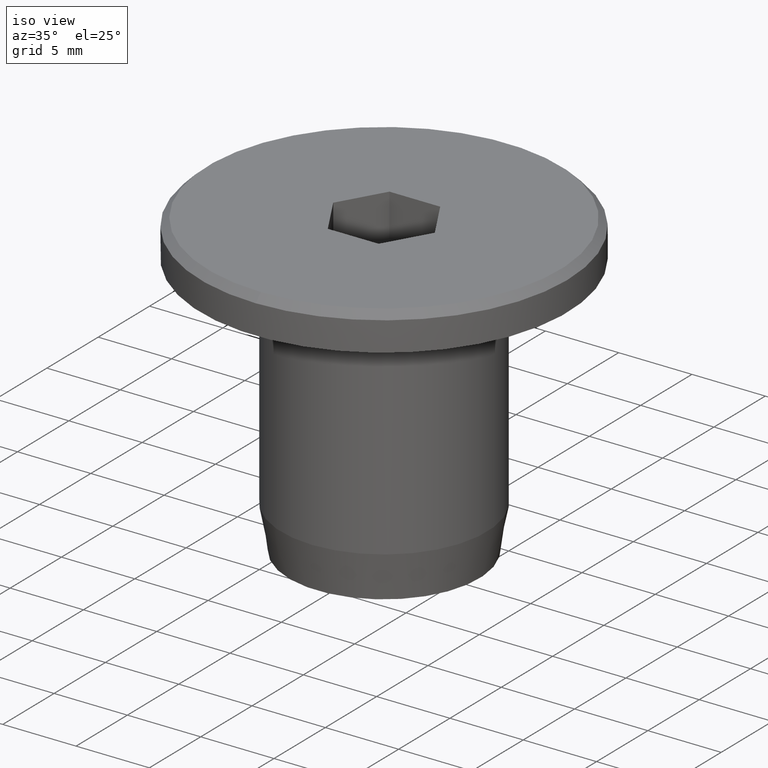
[diagram: clean part render]
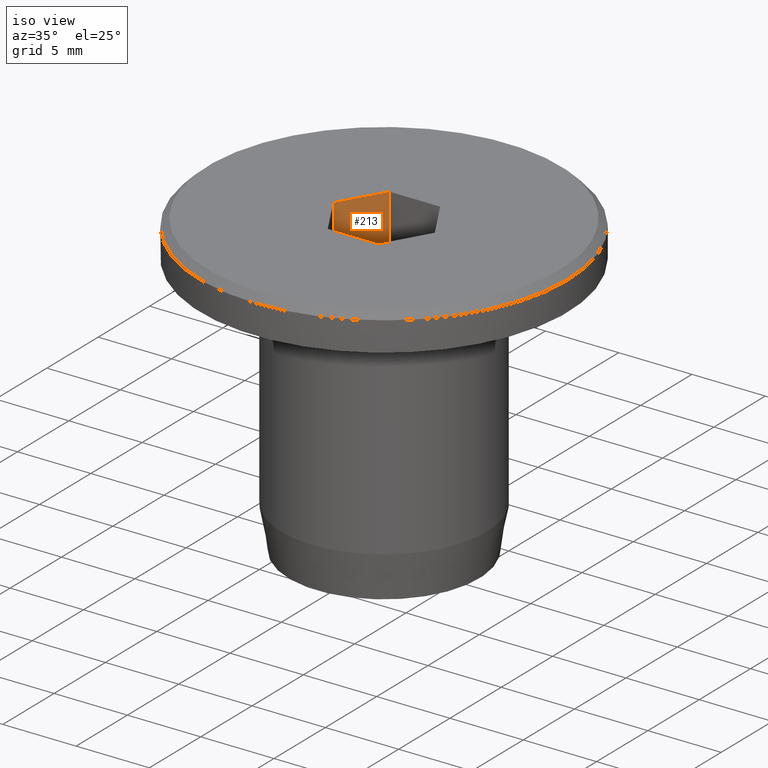
[diagram: same view with one face highlighted and labeled with its STEP entity id]
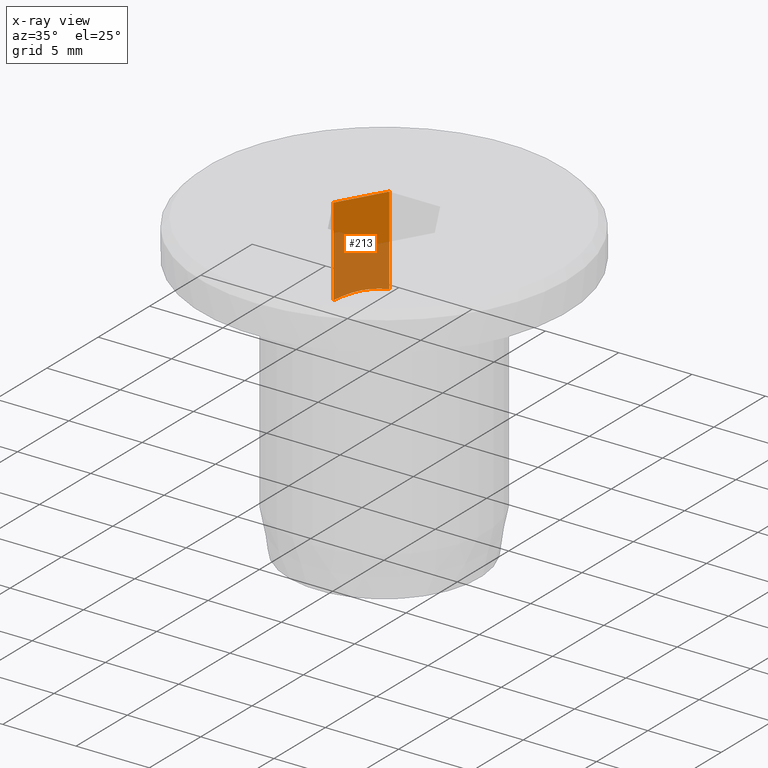
[diagram: x-ray of the same camera — body ghosted, the highlighted face saturated]
A machine part, iso view. The second image highlights one B-rep face of the part: STEP entity #213.
The next image is the same camera in x-ray: the body ghosted, the highlighted face saturated — about 57% of this face is hidden behind the body in this view.
In plain terms, the highlighted planar face has unit normal (-0.866, 0.5, 0).
Its self-contained STEP definition (entity closure, byte-faithful):
#213 = ADVANCED_FACE ( 'NONE', ( #12829 ), #12592, .F. ) ;
#952 = EDGE_CURVE ( 'NONE', #6653, #7084, #11590, .T. ) ;
#1079 = CARTESIAN_POINT ( 'NONE',  ( -1.732050807568877193, 2.999999999999999556, 10.24999999999999822 ) ) ;
#1211 = DIRECTION ( 'NONE',  ( -0.5000000000000001110, -0.8660254037844385966, 0.000000000000000000 ) ) ;
#1256 = ORIENTED_EDGE ( 'NONE', *, *, #1957, .T. ) ;
#1554 = CARTESIAN_POINT ( 'NONE',  ( -1.732050807568877193, 2.999999999999999556, 10.24999999999999822 ) ) ;
#1636 = VECTOR ( 'NONE', #7320, 1000.000000000000227 ) ;
#1845 = CARTESIAN_POINT ( 'NONE',  ( -2.452539552078865537, 1.752076888227187546, 4.501301000976785538 ) ) ;
#1957 = EDGE_CURVE ( 'NONE', #7989, #6653, #9001, .T. ) ;
#2205 = VECTOR ( 'NONE', #15639, 1000.000000000000000 ) ;
#2579 = CARTESIAN_POINT ( 'NONE',  ( -1.732050807568877193, 2.999999999999999556, 4.222215390021087700 ) ) ;
#2993 = CARTESIAN_POINT ( 'NONE',  ( -1.732050807568877193, 2.999999999999999556, -10.24999999999999822 ) ) ;
#3166 = CARTESIAN_POINT ( 'NONE',  ( -1.732050807568877193, 2.999999999999999556, 4.222215390021087700 ) ) ;
#3519 = VECTOR ( 'NONE', #5142, 1000.000000000000000 ) ;
#3563 = VERTEX_POINT ( 'NONE', #16276 ) ;
#3970 = EDGE_LOOP ( 'NONE', ( #4105, #12452, #1256, #9283 ) ) ;
#4105 = ORIENTED_EDGE ( 'NONE', *, *, #9523, .F. ) ;
#5142 = DIRECTION ( 'NONE',  ( -0.000000000000000000, -0.000000000000000000, 1.000000000000000000 ) ) ;
#5712 = CARTESIAN_POINT ( 'NONE',  ( -3.181766946767409454, 0.4890179903555456065, 4.391859173632531643 ) ) ;
#5767 = CARTESIAN_POINT ( 'NONE',  ( -2.894906628524521075, 0.9858746362276058495, 4.500620893838215508 ) ) ;
#5852 = AXIS2_PLACEMENT_3D ( 'NONE', #7658, #16575, #1211 ) ;
#6653 = VERTEX_POINT ( 'NONE', #1554 ) ;
#7054 = CARTESIAN_POINT ( 'NONE',  ( -1.873426030784675733, 2.755130930458844940, 4.307162194158418167 ) ) ;
#7084 = VERTEX_POINT ( 'NONE', #12468 ) ;
#7320 = DIRECTION ( 'NONE',  ( -0.5000000000000000000, -0.8660254037844385966, 0.000000000000000000 ) ) ;
#7658 = CARTESIAN_POINT ( 'NONE',  ( -1.732050807568877193, 2.999999999999999556, -10.24999999999999822 ) ) ;
#7989 = VERTEX_POINT ( 'NONE', #2579 ) ;
#9001 = LINE ( 'NONE', #2993, #2205 ) ;
#9283 = ORIENTED_EDGE ( 'NONE', *, *, #952, .T. ) ;
#9523 = EDGE_CURVE ( 'NONE', #3563, #7084, #9661, .T. ) ;
#9661 = LINE ( 'NONE', #12765, #3519 ) ;
#9992 = B_SPLINE_CURVE_WITH_KNOTS ( 'NONE', 3,
 ( #10765, #5712, #5767, #1845, #14741, #14680, #7054, #3166 ),
 .UNSPECIFIED., .F., .F.,
 ( 4, 2, 2, 4 ),
 ( 2.386327283087848644E-07, 0.001750670349311234412, 0.002625886207602697205, 0.003501102065894159780 ),
 .UNSPECIFIED. ) ;
#10765 = CARTESIAN_POINT ( 'NONE',  ( -3.464101615137753942, 2.192448558790268216E-16, 4.222215390021087700 ) ) ;
#11590 = LINE ( 'NONE', #1079, #1636 ) ;
#12452 = ORIENTED_EDGE ( 'NONE', *, *, #16094, .T. ) ;
#12468 = CARTESIAN_POINT ( 'NONE',  ( -3.464101615137753942, 2.351710125395650214E-16, 10.24999999999999822 ) ) ;
#12592 = PLANE ( 'NONE',  #5852 ) ;
#12765 = CARTESIAN_POINT ( 'NONE',  ( -3.464101615137753942, 2.351710125395650214E-16, -10.24999999999999822 ) ) ;
#12829 = FACE_OUTER_BOUND ( 'NONE', #3970, .T. ) ;
#14680 = CARTESIAN_POINT ( 'NONE',  ( -2.016079539770758711, 2.508047805016967224, 4.377350167721606233 ) ) ;
#14741 = CARTESIAN_POINT ( 'NONE',  ( -2.305121553762312203, 2.007412351261562033, 4.474602601525133672 ) ) ;
#15639 = DIRECTION ( 'NONE',  ( -0.000000000000000000, -0.000000000000000000, 1.000000000000000000 ) ) ;
#16094 = EDGE_CURVE ( 'NONE', #3563, #7989, #9992, .T. ) ;
#16276 = CARTESIAN_POINT ( 'NONE',  ( -3.464101615137753942, 2.192448558790268216E-16, 4.222215390021087700 ) ) ;
#16575 = DIRECTION ( 'NONE',  ( -0.8660254037844385966, 0.5000000000000001110, 0.000000000000000000 ) ) ;